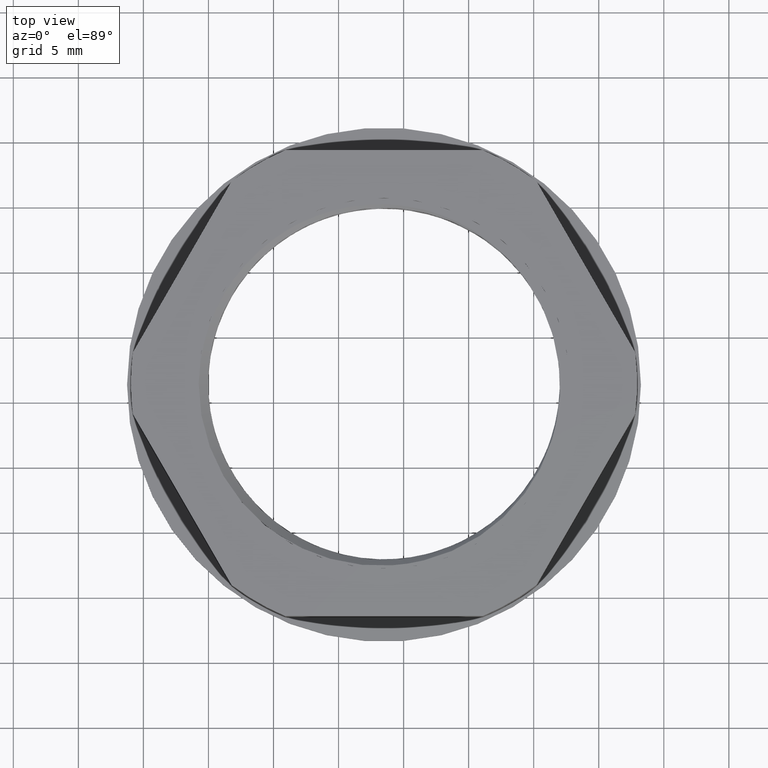
[diagram: clean part render]
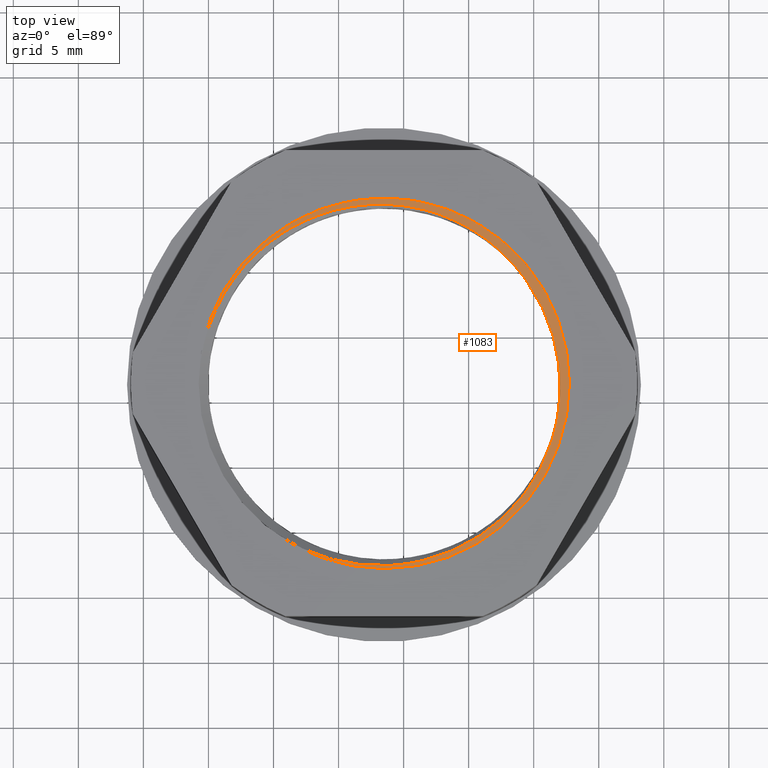
[diagram: same view with one face highlighted and labeled with its STEP entity id]
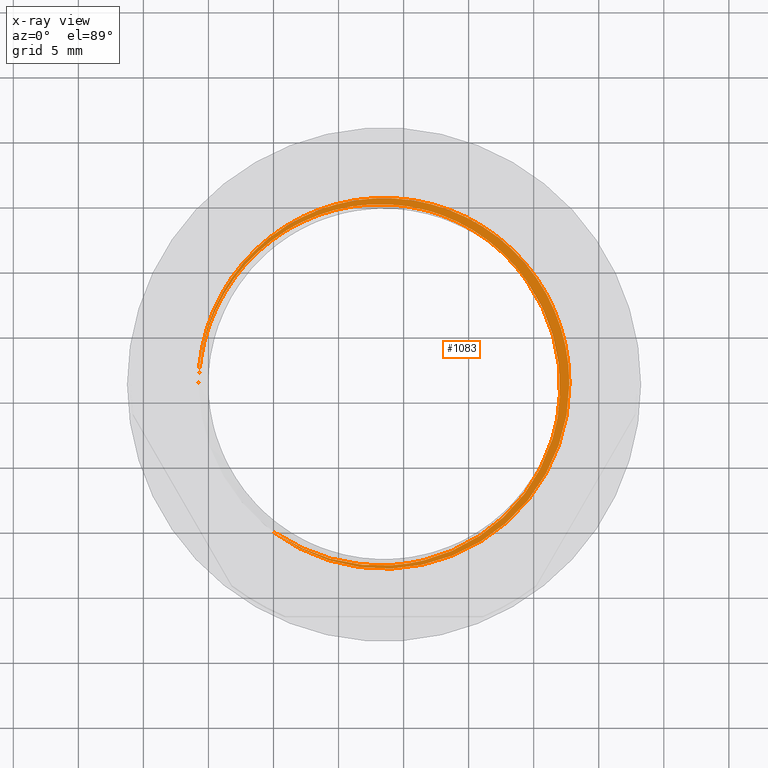
[diagram: x-ray of the same camera — body ghosted, the highlighted face saturated]
A machine part, top view. The second image highlights one B-rep face of the part: STEP entity #1083.
The next image is the same camera in x-ray: the body ghosted, the highlighted face saturated — about 0% of this face is hidden behind the body in this view.
In plain terms, the highlighted planar face has unit normal (0, 0, -1).
Its self-contained STEP definition (entity closure, byte-faithful):
#375 = DIRECTION ( 'NONE',  ( -1.000000000000000000, 0.0000000000000000000, -0.0000000000000000000 ) ) ;
#392 = DIRECTION ( 'NONE',  ( 0.0000000000000000000, 0.0000000000000000000, -1.000000000000000000 ) ) ;
#393 = CARTESIAN_POINT ( 'NONE',  ( 2378.450014830489600, 871.3999937272660600, 22.22366552085515000 ) ) ;
#400 = FACE_OUTER_BOUND ( 'NONE', #1518, .T. ) ;
#409 = PLANE ( 'NONE',  #2118 ) ;
#596 = CARTESIAN_POINT ( 'NONE',  ( 2376.631052331841600, 867.7652102018363400, 22.22366552085516000 ) ) ;
#597 = CARTESIAN_POINT ( 'NONE',  ( 2376.896333161973000, 869.0892562829921000, 22.22366552085515700 ) ) ;
#598 = CARTESIAN_POINT ( 'NONE',  ( 2358.780539437870600, 858.0965024912411500, 22.22366552085515000 ) ) ;
#599 = CARTESIAN_POINT ( 'NONE',  ( 2359.748616864248600, 857.8149212742239300, 22.22366552085515000 ) ) ;
#600 = CARTESIAN_POINT ( 'NONE',  ( 2361.384176331187500, 857.4918972147455600, 22.22366552085515700 ) ) ;
#601 = CARTESIAN_POINT ( 'NONE',  ( 2362.382548448675600, 857.4108603207588400, 22.22366552085515000 ) ) ;
#602 = CARTESIAN_POINT ( 'NONE',  ( 2372.549603161976400, 860.9797946231300300, 22.22366552085515300 ) ) ;
#603 = CARTESIAN_POINT ( 'NONE',  ( 2356.916536518440800, 858.8514644426162500, 22.22366552085515300 ) ) ;
#604 = CARTESIAN_POINT ( 'NONE',  ( 2363.389904891882900, 857.3892977258452700, 22.22366552085515000 ) ) ;
#605 = CARTESIAN_POINT ( 'NONE',  ( 2363.728687536968700, 857.3983243260178100, 22.22366552085514300 ) ) ;
#606 = CARTESIAN_POINT ( 'NONE',  ( 2367.343983498363700, 858.0044145862070800, 22.22366552085515700 ) ) ;
#607 = CARTESIAN_POINT ( 'NONE',  ( 2360.725690863529500, 857.5928954299831700, 22.22366552085515700 ) ) ;
#608 = CARTESIAN_POINT ( 'NONE',  ( 2370.960377882609000, 859.7341970034212900, 22.22366552085516400 ) ) ;
#609 = CARTESIAN_POINT ( 'NONE',  ( 2372.035494691557200, 860.5348968864436800, 22.22366552085516000 ) ) ;
#610 = CARTESIAN_POINT ( 'NONE',  ( 2366.700378576095300, 857.8224699880129300, 22.22366552085501800 ) ) ;
#611 = CARTESIAN_POINT ( 'NONE',  ( 2358.460218229186000, 858.2066298488232400, 22.22366552085515300 ) ) ;
#612 = CARTESIAN_POINT ( 'NONE',  ( 2369.225064459304100, 858.7425379504901500, 22.22366552085516000 ) ) ;
#613 = CARTESIAN_POINT ( 'NONE',  ( 2370.398130122513100, 859.3760013238583000, 22.22366552085516400 ) ) ;
#614 = CARTESIAN_POINT ( 'NONE',  ( 2373.494586128573200, 861.9263925259929200, 22.22366552085515300 ) ) ;
#615 = CARTESIAN_POINT ( 'NONE',  ( 2365.395531152154500, 857.5508026017937500, 22.22366552085502900 ) ) ;
#616 = CARTESIAN_POINT ( 'NONE',  ( 2368.612395885310000, 858.4665902609189100, 22.22366552085516000 ) ) ;
#617 = CARTESIAN_POINT ( 'NONE',  ( 2373.930013631068500, 862.4309886151545500, 22.22366552085514600 ) ) ;
#618 = CARTESIAN_POINT ( 'NONE',  ( 2362.717119758266600, 857.3956352357334900, 22.22366552085515000 ) ) ;
#619 = CARTESIAN_POINT ( 'NONE',  ( 2374.717834169454400, 863.5102957968207400, 22.22366552085516000 ) ) ;
#620 = CARTESIAN_POINT ( 'NONE',  ( 2364.734241014452900, 857.4613288888123200, 22.22366552085513900 ) ) ;
#621 = CARTESIAN_POINT ( 'NONE',  ( 2357.520374751651600, 858.5679501445151800, 22.22366552085515000 ) ) ;
#622 = CARTESIAN_POINT ( 'NONE',  ( 2375.078940434769700, 864.0776493649682400, 22.22366552085515700 ) ) ;
#623 = CARTESIAN_POINT ( 'NONE',  ( 2375.250435036220100, 864.3701484710718400, 22.22366552085514300 ) ) ;
#624 = CARTESIAN_POINT ( 'NONE',  ( 2375.727871863630800, 865.2579399508495000, 22.22366552085514600 ) ) ;
#625 = CARTESIAN_POINT ( 'NONE',  ( 2375.999317254984400, 865.8675051400117600, 22.22366552085514300 ) ) ;
#626 = CARTESIAN_POINT ( 'NONE',  ( 2374.527822415729100, 863.2346059520824600, 22.22366552085514300 ) ) ;
#627 = CARTESIAN_POINT ( 'NONE',  ( 2359.424707841953000, 857.9007284021533900, 22.22366552085515300 ) ) ;
#628 = CARTESIAN_POINT ( 'NONE',  ( 2376.450903904180900, 867.1211416203309500, 22.22366552085514600 ) ) ;
#630 = CARTESIAN_POINT ( 'NONE',  ( 2376.979375005825700, 869.7597889469777800, 22.22366552085515700 ) ) ;
#631 = CARTESIAN_POINT ( 'NONE',  ( 2377.012147316678700, 870.4351016267032700, 22.22366552085513900 ) ) ;
#981 = EDGE_CURVE ( 'NONE', #1462, #1495, #2047, .T. ) ;
#990 = EDGE_CURVE ( 'NONE', #1496, #1469, #2184, .T. ) ;
#1012 = EDGE_CURVE ( 'NONE', #1479, #1468, #2054, .T. ) ;
#1014 = EDGE_CURVE ( 'NONE', #1468, #1496, #2068, .T. ) ;
#1025 = EDGE_CURVE ( 'NONE', #1495, #1469, #2050, .T. ) ;
#1037 = EDGE_CURVE ( 'NONE', #1479, #1462, #2041, .T. ) ;
#1083 = ADVANCED_FACE ( 'NONE', ( #400 ), #409, .F. ) ;
#1156 = CARTESIAN_POINT ( 'NONE',  ( 2377.012147316678700, 870.4351016267032700, 22.22366552085513900 ) ) ;
#1170 = CARTESIAN_POINT ( 'NONE',  ( 2353.136878759966700, 861.6115215472613000, 22.22366552085515000 ) ) ;
#1172 = CARTESIAN_POINT ( 'NONE',  ( 2349.243298942693900, 871.3009686054081200, 22.22366552085515000 ) ) ;
#1190 = CARTESIAN_POINT ( 'NONE',  ( 2377.742954869249800, 871.3999937272660600, 22.22366552085515000 ) ) ;
#1200 = CARTESIAN_POINT ( 'NONE',  ( 2372.581370390984400, 881.4548574508802400, 22.22366552086063200 ) ) ;
#1220 = CARTESIAN_POINT ( 'NONE',  ( 2349.242954869249800, 871.3999937272660600, 22.22366552085515000 ) ) ;
#1352 = CARTESIAN_POINT ( 'NONE',  ( 2352.312874139533100, 880.0163143875584000, 22.22366552085515700 ) ) ;
#1353 = CARTESIAN_POINT ( 'NONE',  ( 2351.212928628870500, 878.3211844955702600, 22.22366552085515300 ) ) ;
#1354 = CARTESIAN_POINT ( 'NONE',  ( 2350.067167956442100, 875.9126530630601300, 22.22366552085515300 ) ) ;
#1355 = CARTESIAN_POINT ( 'NONE',  ( 2361.800393859791700, 885.1119541013953300, 22.22366552085513200 ) ) ;
#1356 = CARTESIAN_POINT ( 'NONE',  ( 2358.225933651411200, 884.2696130263580000, 22.22366552085515300 ) ) ;
#1357 = CARTESIAN_POINT ( 'NONE',  ( 2362.802844266003400, 885.1768402858743900, 22.22366552085515300 ) ) ;
#1358 = CARTESIAN_POINT ( 'NONE',  ( 2357.002008584330300, 883.7305737512913300, 22.22366552085515300 ) ) ;
#1359 = CARTESIAN_POINT ( 'NONE',  ( 2349.673473370520200, 874.6335778249982700, 22.22366552085515000 ) ) ;
#1360 = CARTESIAN_POINT ( 'NONE',  ( 2363.141216145412700, 885.1821783656622500, 22.22366552085513900 ) ) ;
#1362 = CARTESIAN_POINT ( 'NONE',  ( 2350.307637071334300, 876.5339787002021700, 22.22366552085515300 ) ) ;
#1363 = CARTESIAN_POINT ( 'NONE',  ( 2368.677154092984900, 884.0375063165586200, 22.22366552085515000 ) ) ;
#1364 = CARTESIAN_POINT ( 'NONE',  ( 2368.055454828612300, 884.2906807086193300, 22.22366552085514600 ) ) ;
#1365 = CARTESIAN_POINT ( 'NONE',  ( 2358.865689572749500, 884.4979101020906000, 22.22366552085515000 ) ) ;
#1367 = CARTESIAN_POINT ( 'NONE',  ( 2366.128169623277200, 884.8760848785034300, 22.22366552085516700 ) ) ;
#1369 = CARTESIAN_POINT ( 'NONE',  ( 2360.155312685732000, 884.8556222892810900, 22.22366552085514600 ) ) ;
#1373 = CARTESIAN_POINT ( 'NONE',  ( 2367.737792135585100, 884.4066542771892000, 22.22366552085514300 ) ) ;
#1374 = CARTESIAN_POINT ( 'NONE',  ( 2351.388277025699200, 878.6102618993290900, 22.22366552085515000 ) ) ;
#1376 = CARTESIAN_POINT ( 'NONE',  ( 2350.733041354875700, 877.4389548417292400, 22.22366552085515000 ) ) ;
#1377 = CARTESIAN_POINT ( 'NONE',  ( 2349.520209284998600, 873.9725776087602800, 22.22366552085515300 ) ) ;
#1378 = CARTESIAN_POINT ( 'NONE',  ( 2366.776921477709900, 884.7177890213472400, 22.22366552085515300 ) ) ;
#1379 = CARTESIAN_POINT ( 'NONE',  ( 2349.253111490187200, 871.9761630495643200, 22.22366552085514600 ) ) ;
#1381 = CARTESIAN_POINT ( 'NONE',  ( 2355.564702488546600, 882.8893900225797300, 22.22366552085514600 ) ) ;
#1382 = CARTESIAN_POINT ( 'NONE',  ( 2349.310752249478800, 872.6454873878049100, 22.22366552085515000 ) ) ;
#1383 = CARTESIAN_POINT ( 'NONE',  ( 2349.243298942693900, 871.3009686054081200, 22.22366552085515000 ) ) ;
#1385 = CARTESIAN_POINT ( 'NONE',  ( 2350.885666121859700, 877.7360948434305800, 22.22366552085515300 ) ) ;
#1390 = CARTESIAN_POINT ( 'NONE',  ( 2371.566718339507600, 882.3445519850226900, 22.22366552085515000 ) ) ;
#1391 = CARTESIAN_POINT ( 'NONE',  ( 2356.413266280215800, 883.4190811155740400, 22.22366552085515300 ) ) ;
#1392 = CARTESIAN_POINT ( 'NONE',  ( 2353.196163408835700, 881.0125754163381100, 22.22366552085515300 ) ) ;
#1395 = CARTESIAN_POINT ( 'NONE',  ( 2372.090511691420000, 881.9189558182348500, 22.22366552085496800 ) ) ;
#1397 = CARTESIAN_POINT ( 'NONE',  ( 2360.808371524019100, 884.9868674256478000, 22.22366552085513200 ) ) ;
#1399 = CARTESIAN_POINT ( 'NONE',  ( 2369.881347474427000, 883.4546779793665800, 22.22366552085516700 ) ) ;
#1400 = CARTESIAN_POINT ( 'NONE',  ( 2368.982376364285800, 883.8999415302089300, 22.22366552085516700 ) ) ;
#1401 = CARTESIAN_POINT ( 'NONE',  ( 2364.150292539626700, 885.1608609536569900, 22.22366552085513900 ) ) ;
#1402 = CARTESIAN_POINT ( 'NONE',  ( 2372.581370390984400, 881.4548574508802400, 22.22366552086063200 ) ) ;
#1403 = CARTESIAN_POINT ( 'NONE',  ( 2364.814855241195300, 885.0976213674705400, 22.22366552085516700 ) ) ;
#1404 = CARTESIAN_POINT ( 'NONE',  ( 2370.458618201236700, 883.1148344907672900, 22.22366552085515000 ) ) ;
#1405 = CARTESIAN_POINT ( 'NONE',  ( 2362.133138404286000, 885.1416972035211800, 22.22366552085515300 ) ) ;
#1406 = CARTESIAN_POINT ( 'NONE',  ( 2355.287628068753300, 882.7023780484474900, 22.22366552085515000 ) ) ;
#1407 = CARTESIAN_POINT ( 'NONE',  ( 2354.745263177801000, 882.3070533780554600, 22.22366552085515300 ) ) ;
#1408 = CARTESIAN_POINT ( 'NONE',  ( 2354.479018060164400, 882.0978661713551200, 22.22366552085514600 ) ) ;
#1438 = CARTESIAN_POINT ( 'NONE',  ( 2355.753131065474000, 859.5015527019945700, 22.22366552085515700 ) ) ;
#1462 = VERTEX_POINT ( 'NONE', #1156 ) ;
#1468 = VERTEX_POINT ( 'NONE', #1190 ) ;
#1469 = VERTEX_POINT ( 'NONE', #1172 ) ;
#1479 = VERTEX_POINT ( 'NONE', #1170 ) ;
#1495 = VERTEX_POINT ( 'NONE', #1200 ) ;
#1496 = VERTEX_POINT ( 'NONE', #1220 ) ;
#1518 = EDGE_LOOP ( 'NONE', ( #1705, #1703, #1667, #1737, #1727, #1732 ) ) ;
#1667 = ORIENTED_EDGE ( 'NONE', *, *, #1014, .T. ) ;
#1703 = ORIENTED_EDGE ( 'NONE', *, *, #1012, .T. ) ;
#1705 = ORIENTED_EDGE ( 'NONE', *, *, #1037, .F. ) ;
#1727 = ORIENTED_EDGE ( 'NONE', *, *, #1025, .F. ) ;
#1732 = ORIENTED_EDGE ( 'NONE', *, *, #981, .F. ) ;
#1737 = ORIENTED_EDGE ( 'NONE', *, *, #990, .T. ) ;
#1773 = CARTESIAN_POINT ( 'NONE',  ( 2353.136878759966700, 861.6115215472613000, 22.22366552085515000 ) ) ;
#1775 = CARTESIAN_POINT ( 'NONE',  ( 2377.036118672482200, 871.4641678188911600, 22.22366552085515300 ) ) ;
#1784 = CARTESIAN_POINT ( 'NONE',  ( 2377.012147316678700, 870.4351016267032700, 22.22366552085513900 ) ) ;
#1787 = CARTESIAN_POINT ( 'NONE',  ( 2377.037095911738600, 870.9491972807950300, 22.22366552085509300 ) ) ;
#1788 = CARTESIAN_POINT ( 'NONE',  ( 2376.978689146954400, 872.4914769458471300, 22.22366552085514600 ) ) ;
#1791 = CARTESIAN_POINT ( 'NONE',  ( 2375.128072999508700, 878.2737044240178600, 22.22366552085679800 ) ) ;
#1792 = CARTESIAN_POINT ( 'NONE',  ( 2376.402193015124800, 875.4821411537012600, 22.22366552085515000 ) ) ;
#1793 = CARTESIAN_POINT ( 'NONE',  ( 2375.826749626738500, 876.9126294513631600, 22.22366552085515000 ) ) ;
#1794 = CARTESIAN_POINT ( 'NONE',  ( 2376.922725076206000, 872.9989790802649200, 22.22366552085515700 ) ) ;
#1795 = CARTESIAN_POINT ( 'NONE',  ( 2376.674324974707400, 874.5033081750287900, 22.22366552085515000 ) ) ;
#1796 = CARTESIAN_POINT ( 'NONE',  ( 2375.609094841763600, 877.3771994679954100, 22.22366552085679100 ) ) ;
#1797 = CARTESIAN_POINT ( 'NONE',  ( 2374.289863740988000, 879.5447415353703500, 22.22366552085515000 ) ) ;
#1798 = CARTESIAN_POINT ( 'NONE',  ( 2373.979582231612800, 879.9489104961887700, 22.22366552085515700 ) ) ;
#1799 = CARTESIAN_POINT ( 'NONE',  ( 2372.955375325151200, 881.1012422873266100, 22.22366552086635100 ) ) ;
#1804 = CARTESIAN_POINT ( 'NONE',  ( 2374.864100036694700, 878.7071327570137100, 22.22366552085515000 ) ) ;
#1807 = CARTESIAN_POINT ( 'NONE',  ( 2373.312169460241900, 880.7276470925822900, 22.22366552085516000 ) ) ;
#1809 = CARTESIAN_POINT ( 'NONE',  ( 2372.581370390984400, 881.4548574508802400, 22.22366552086063200 ) ) ;
#1820 = CARTESIAN_POINT ( 'NONE',  ( 2353.611560312062000, 861.1305356953774900, 22.22366552085515000 ) ) ;
#1843 = CARTESIAN_POINT ( 'NONE',  ( 2363.492954869249800, 871.3999937272660600, 22.22366552085515000 ) ) ;
#1844 = DIRECTION ( 'NONE',  ( 1.000000000000000000, 0.0000000000000000000, 0.0000000000000000000 ) ) ;
#1846 = CARTESIAN_POINT ( 'NONE',  ( 2354.118880011531500, 860.6846711927089500, 22.22366552085515300 ) ) ;
#1850 = DIRECTION ( 'NONE',  ( 0.0000000000000000000, 0.0000000000000000000, 1.000000000000000000 ) ) ;
#1984 = CARTESIAN_POINT ( 'NONE',  ( 2355.193258969387000, 859.8675546654004600, 22.22366552085515000 ) ) ;
#2007 = DIRECTION ( 'NONE',  ( 0.0000000000000000000, 0.0000000000000000000, 1.000000000000000000 ) ) ;
#2014 = CARTESIAN_POINT ( 'NONE',  ( 2363.492954869249800, 871.3999937272660600, 22.22366552085515000 ) ) ;
#2015 = DIRECTION ( 'NONE',  ( 0.0000000000000000000, 0.0000000000000000000, 1.000000000000000000 ) ) ;
#2020 = CARTESIAN_POINT ( 'NONE',  ( 2363.492954869249800, 871.3999937272660600, 22.22366552085515000 ) ) ;
#2028 = DIRECTION ( 'NONE',  ( 1.000000000000000000, 0.0000000000000000000, 0.0000000000000000000 ) ) ;
#2033 = DIRECTION ( 'NONE',  ( 1.000000000000000000, 0.0000000000000000000, 0.0000000000000000000 ) ) ;
#2041 = B_SPLINE_CURVE_WITH_KNOTS ( 'NONE', 3,
 ( #1773, #1820, #1846, #1984, #1438, #603, #621, #611, #598, #627, #599, #607, #600, #601, #618, #604, #605, #620, #615, #610, #606, #616, #612, #613, #608, #609, #602, #614, #617, #626, #619, #622, #623, #624, #625, #628, #596, #597, #630, #631 ),
 .UNSPECIFIED., .F., .F.,
 ( 4, 2, 2, 2, 2, 2, 2, 2, 2, 2, 2, 2, 2, 2, 2, 2, 2, 2, 2, 4 ),
 ( 0.0000000000000000000, 0.002022772412910428000, 0.004045544825820856000, 0.006068317238731284000, 0.007079703445186558300, 0.008091089651641831700, 0.01011386206455238000, 0.01112524827100698300, 0.01213663447746158600, 0.01415940689037079400, 0.01618217930328000300, 0.01820495171618920900, 0.02022772412909841500, 0.02225049654200762100, 0.02427326895491682700, 0.02528465516137143000, 0.02629604136782603600, 0.02831881378073616800, 0.03034158619364630100, 0.03236435860655643300 ),
 .UNSPECIFIED. ) ;
#2047 = B_SPLINE_CURVE_WITH_KNOTS ( 'NONE', 3,
 ( #1784, #1787, #1775, #1788, #1794, #1795, #1792, #1793, #1796, #1791, #1804, #1797, #1798, #1807, #1799, #1809 ),
 .UNSPECIFIED., .F., .F.,
 ( 4, 2, 2, 2, 2, 2, 2, 4 ),
 ( 0.0000000000000000000, 0.001544028314614525900, 0.003088056629229051700, 0.006176113258458322900, 0.007720141573073207600, 0.009264169887688092400, 0.01080819820230297800, 0.01235222651691786400 ),
 .UNSPECIFIED. ) ;
#2050 = B_SPLINE_CURVE_WITH_KNOTS ( 'NONE', 3,
 ( #1402, #1395, #1390, #1404, #1399, #1400, #1363, #1364, #1373, #1378, #1367, #1403, #1401, #1360, #1357, #1405, #1355, #1397, #1369, #1365, #1356, #1358, #1391, #1381, #1406, #1407, #1408, #1392, #1352, #1374, #1353, #1385, #1376, #1362, #1354, #1359, #1377, #1382, #1379, #1383 ),
 .UNSPECIFIED., .F., .F.,
 ( 4, 2, 2, 2, 2, 2, 2, 2, 2, 2, 2, 2, 2, 2, 2, 2, 2, 2, 2, 4 ),
 ( 5.132305394595624400E-015, 0.002021471605833377300, 0.004042943211661622500, 0.005053679014576272600, 0.006064414817490921900, 0.008085886423318850900, 0.01010735802914677900, 0.01111809383206074200, 0.01212882963497470200, 0.01415030124080263000, 0.01617177284663055800, 0.01819324445245848500, 0.01920398025537302000, 0.02021471605828755600, 0.02425765926994488700, 0.02526839507285965800, 0.02627913087577442600, 0.02830060248160427100, 0.03032207408743411300, 0.03234354569326396100 ),
 .UNSPECIFIED. ) ;
#2054 = CIRCLE ( 'NONE', #2084, 14.25000000000009600 ) ;
#2065 = AXIS2_PLACEMENT_3D ( 'NONE', #2014, #2015, #2028 ) ;
#2068 = CIRCLE ( 'NONE', #2065, 14.25000000000009600 ) ;
#2084 = AXIS2_PLACEMENT_3D ( 'NONE', #2020, #2007, #2033 ) ;
#2118 = AXIS2_PLACEMENT_3D ( 'NONE', #393, #392, #375 ) ;
#2173 = AXIS2_PLACEMENT_3D ( 'NONE', #1843, #1850, #1844 ) ;
#2184 = CIRCLE ( 'NONE', #2173, 14.25000000000009600 ) ;